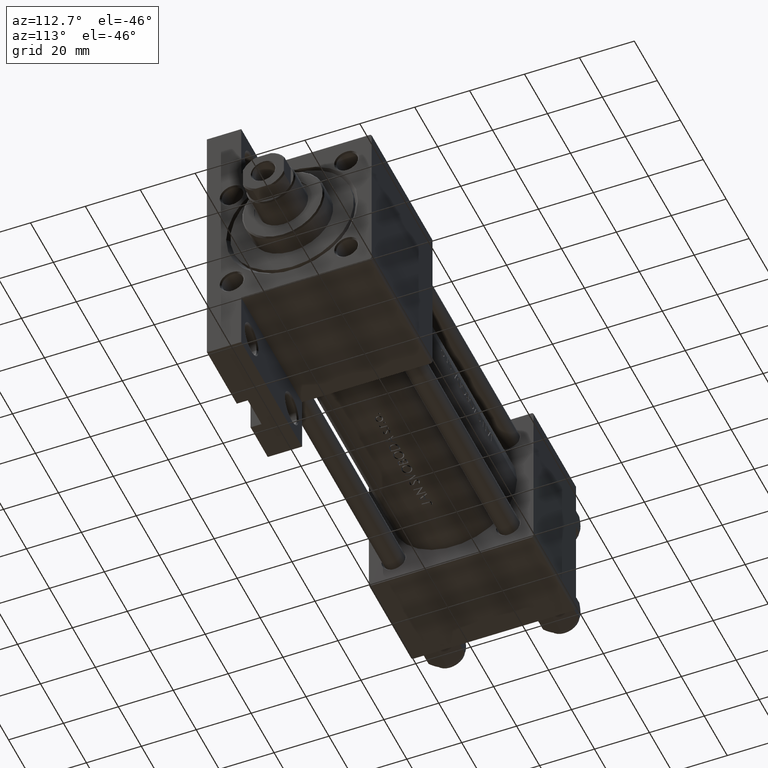
[diagram: clean part render]
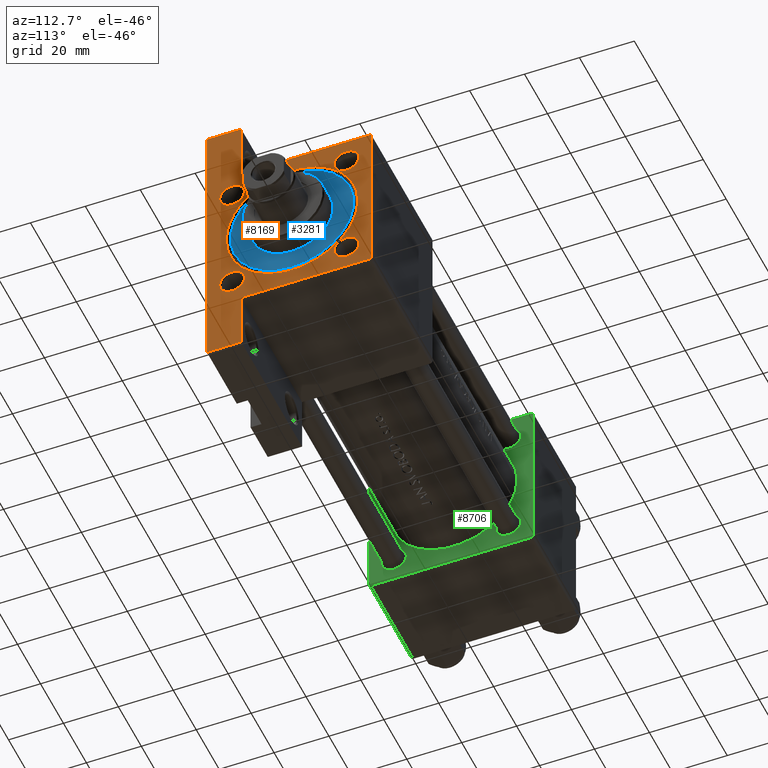
[diagram: same view with three faces highlighted in distinct colors, each labeled with its STEP entity id]
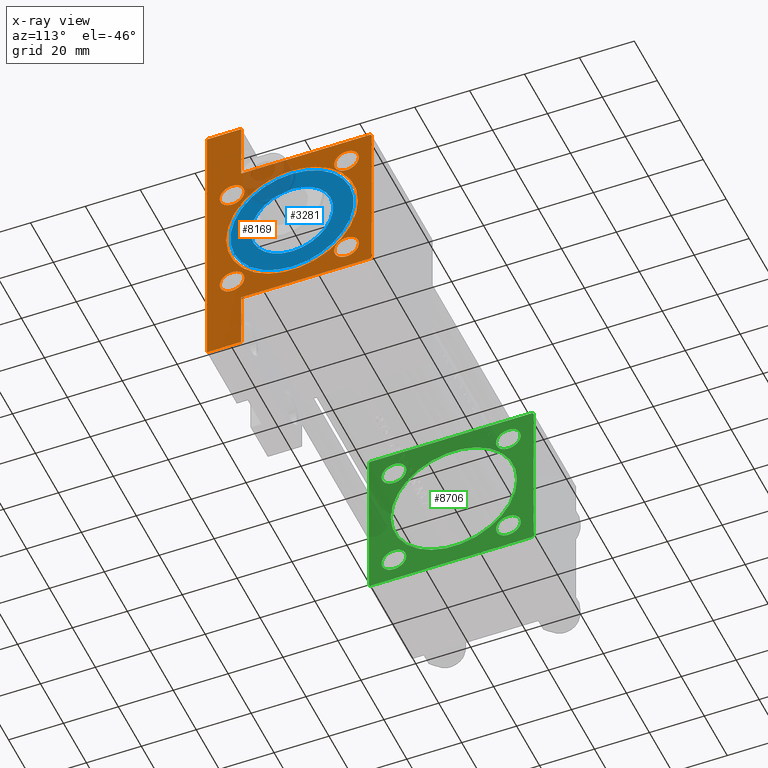
[diagram: x-ray of the same camera — body ghosted, the three highlighted faces saturated]
A machine part, auxiliary view with three faces highlighted in distinct colors.
The next image is the same camera in x-ray (body ghosted, the three faces saturated) — at least one of them is partly hidden behind the body in this view.
Their STEP definitions:

[orange] entity #8169 — the highlighted planar face has unit normal (-1, 0, -0).
#146 = DIRECTION ( 'NONE',  ( 0.000000000000000000, 0.000000000000000000, 1.000000000000000000 ) ) ;
#392 = AXIS2_PLACEMENT_3D ( 'NONE', #3408, #26072, #17970 ) ;
#541 = ORIENTED_EDGE ( 'NONE', *, *, #44202, .T. ) ;
#830 = DIRECTION ( 'NONE',  ( 0.000000000000000000, 0.000000000000000000, 1.000000000000000000 ) ) ;
#1062 = EDGE_CURVE ( 'NONE', #46755, #27860, #35836, .T. ) ;
#1180 = CARTESIAN_POINT ( 'NONE',  ( 178.0000000000000000, -30.00000000000000000, 29.99999999999999289 ) ) ;
#1210 = PLANE ( 'NONE',  #6178 ) ;
#1442 = CARTESIAN_POINT ( 'NONE',  ( 178.0000000000000000, 29.50000000000000000, 30.00000000000000000 ) ) ;
#1510 = VERTEX_POINT ( 'NONE', #36581 ) ;
#1654 = CIRCLE ( 'NONE', #38664, 4.500000000000059508 ) ;
#1881 = CARTESIAN_POINT ( 'NONE',  ( 178.0000000000000000, -20.84999999999999432, 20.85000000000000142 ) ) ;
#2068 = LINE ( 'NONE', #27941, #10746 ) ;
#2916 = EDGE_CURVE ( 'NONE', #38423, #1510, #27242, .T. ) ;
#3182 = VERTEX_POINT ( 'NONE', #15163 ) ;
#3408 = CARTESIAN_POINT ( 'NONE',  ( 178.0000000000000000, 20.84999999999999787, -20.85000000000000142 ) ) ;
#3980 = EDGE_CURVE ( 'NONE', #22064, #28334, #2068, .T. ) ;
#4528 = ORIENTED_EDGE ( 'NONE', *, *, #15642, .T. ) ;
#4920 = DIRECTION ( 'NONE',  ( -0.000000000000000000, 0.000000000000000000, 1.000000000000000000 ) ) ;
#5180 = CARTESIAN_POINT ( 'NONE',  ( 178.0000000000000000, -51.50000000000001421, -17.49999999999999645 ) ) ;
#5204 = VECTOR ( 'NONE', #7363, 1000.000000000000000 ) ;
#5434 = DIRECTION ( 'NONE',  ( -0.000000000000000000, -1.000000000000000000, -0.000000000000000000 ) ) ;
#6178 = AXIS2_PLACEMENT_3D ( 'NONE', #39169, #39410, #4920 ) ;
#6304 = ORIENTED_EDGE ( 'NONE', *, *, #1062, .T. ) ;
#6431 = VECTOR ( 'NONE', #10205, 1000.000000000000114 ) ;
#6840 = ORIENTED_EDGE ( 'NONE', *, *, #38686, .F. ) ;
#7199 = VERTEX_POINT ( 'NONE', #39096 ) ;
#7289 = EDGE_LOOP ( 'NONE', ( #4528, #21973 ) ) ;
#7334 = AXIS2_PLACEMENT_3D ( 'NONE', #8224, #23268, #830 ) ;
#7363 = DIRECTION ( 'NONE',  ( 0.000000000000000000, 0.000000000000000000, -1.000000000000000000 ) ) ;
#8169 = ADVANCED_FACE ( 'NONE', ( #24611, #23877, #42608, #35959, #38676, #16992 ), #1210, .F. ) ;
#8224 = CARTESIAN_POINT ( 'NONE',  ( 178.0000000000000000, -20.84999999999999432, 20.85000000000000142 ) ) ;
#8614 = DIRECTION ( 'NONE',  ( 0.000000000000000000, 0.000000000000000000, -1.000000000000000000 ) ) ;
#8649 = CIRCLE ( 'NONE', #36992, 4.500000000000059508 ) ;
#9032 = DIRECTION ( 'NONE',  ( 0.000000000000000000, -1.000000000000000000, 0.000000000000000000 ) ) ;
#9143 = VECTOR ( 'NONE', #5434, 1000.000000000000000 ) ;
#9617 = CARTESIAN_POINT ( 'NONE',  ( 178.0000000000000000, 20.84999999999999787, -25.35000000000005826 ) ) ;
#9787 = EDGE_LOOP ( 'NONE', ( #6840, #45616, #23591, #17753, #20680, #10633, #21915, #18454, #48780, #33987 ) ) ;
#10099 = LINE ( 'NONE', #25121, #18305 ) ;
#10205 = DIRECTION ( 'NONE',  ( -0.000000000000000000, -0.7071067811865474617, -0.7071067811865474617 ) ) ;
#10518 = DIRECTION ( 'NONE',  ( 0.000000000000000000, 0.000000000000000000, 1.000000000000000000 ) ) ;
#10633 = ORIENTED_EDGE ( 'NONE', *, *, #31574, .T. ) ;
#10746 = VECTOR ( 'NONE', #40015, 1000.000000000000114 ) ;
#10958 = DIRECTION ( 'NONE',  ( 0.000000000000000000, -1.000000000000000000, -1.156482317317871478E-16 ) ) ;
#11319 = CARTESIAN_POINT ( 'NONE',  ( 178.0000000000000000, 20.84999999999999787, 20.85000000000000142 ) ) ;
#11437 = EDGE_LOOP ( 'NONE', ( #541, #19782 ) ) ;
#11599 = VERTEX_POINT ( 'NONE', #46846 ) ;
#11680 = DIRECTION ( 'NONE',  ( -1.000000000000000000, 0.000000000000000000, -0.000000000000000000 ) ) ;
#11824 = VECTOR ( 'NONE', #30905, 1000.000000000000000 ) ;
#12506 = EDGE_CURVE ( 'NONE', #24978, #18838, #16411, .T. ) ;
#13330 = VERTEX_POINT ( 'NONE', #30872 ) ;
#13564 = CARTESIAN_POINT ( 'NONE',  ( 178.0000000000000000, 51.49999999999998579, -17.49999999999999645 ) ) ;
#14427 = CIRCLE ( 'NONE', #7334, 4.500000000000059508 ) ;
#14468 = CARTESIAN_POINT ( 'NONE',  ( 178.0000000000000000, 20.84999999999999787, -20.85000000000000142 ) ) ;
#14972 = VERTEX_POINT ( 'NONE', #44066 ) ;
#15163 = CARTESIAN_POINT ( 'NONE',  ( 178.0000000000000000, 51.49999999999998579, -17.49999999999999645 ) ) ;
#15352 = CARTESIAN_POINT ( 'NONE',  ( 178.0000000000000000, 20.84999999999999787, 20.85000000000000142 ) ) ;
#15642 = EDGE_CURVE ( 'NONE', #29566, #14972, #14427, .T. ) ;
#15662 = VECTOR ( 'NONE', #8614, 1000.000000000000000 ) ;
#16411 = CIRCLE ( 'NONE', #28973, 4.500000000000059508 ) ;
#16709 = DIRECTION ( 'NONE',  ( 0.000000000000000000, 0.000000000000000000, -1.000000000000000000 ) ) ;
#16926 = CARTESIAN_POINT ( 'NONE',  ( 178.0000000000000000, 51.49999999999998579, -17.49999999999999645 ) ) ;
#16992 = FACE_OUTER_BOUND ( 'NONE', #9787, .T. ) ;
#17506 = CARTESIAN_POINT ( 'NONE',  ( 178.0000000000000000, 0.000000000000000000, 1.000000000000007772 ) ) ;
#17605 = CARTESIAN_POINT ( 'NONE',  ( 178.0000000000000000, -30.00000000000000000, 29.50000000000001776 ) ) ;
#17753 = ORIENTED_EDGE ( 'NONE', *, *, #45356, .T. ) ;
#17970 = DIRECTION ( 'NONE',  ( 0.000000000000000000, 0.000000000000000000, 1.000000000000000000 ) ) ;
#18193 = CIRCLE ( 'NONE', #22907, 4.500000000000059508 ) ;
#18305 = VECTOR ( 'NONE', #38403, 1000.000000000000000 ) ;
#18454 = ORIENTED_EDGE ( 'NONE', *, *, #29334, .F. ) ;
#18497 = ORIENTED_EDGE ( 'NONE', *, *, #2916, .T. ) ;
#18689 = VECTOR ( 'NONE', #16709, 1000.000000000000000 ) ;
#18838 = VERTEX_POINT ( 'NONE', #32820 ) ;
#18970 = DIRECTION ( 'NONE',  ( 0.000000000000000000, 0.000000000000000000, 1.000000000000000000 ) ) ;
#19019 = CARTESIAN_POINT ( 'NONE',  ( 178.0000000000000000, 29.99999999999999289, -17.49999999999999645 ) ) ;
#19107 = EDGE_CURVE ( 'NONE', #28334, #35010, #10099, .T. ) ;
#19561 = DIRECTION ( 'NONE',  ( 0.000000000000000000, 0.000000000000000000, 1.000000000000000000 ) ) ;
#19782 = ORIENTED_EDGE ( 'NONE', *, *, #27781, .T. ) ;
#20220 = VERTEX_POINT ( 'NONE', #19019 ) ;
#20680 = ORIENTED_EDGE ( 'NONE', *, *, #31914, .T. ) ;
#20897 = CARTESIAN_POINT ( 'NONE',  ( 178.0000000000000000, -51.50000000000001421, -17.49999999999999645 ) ) ;
#21237 = CARTESIAN_POINT ( 'NONE',  ( 178.0000000000000000, 2.939152317953654205E-15, 25.00000000000006040 ) ) ;
#21676 = DIRECTION ( 'NONE',  ( 0.000000000000000000, 0.000000000000000000, 1.000000000000000000 ) ) ;
#21915 = ORIENTED_EDGE ( 'NONE', *, *, #41815, .T. ) ;
#21973 = ORIENTED_EDGE ( 'NONE', *, *, #40764, .T. ) ;
#22054 = CARTESIAN_POINT ( 'NONE',  ( 178.0000000000000000, 30.00000000000000000, -29.99999999999999289 ) ) ;
#22064 = VERTEX_POINT ( 'NONE', #33874 ) ;
#22106 = DIRECTION ( 'NONE',  ( -1.000000000000000000, 0.000000000000000000, -0.000000000000000000 ) ) ;
#22907 = AXIS2_PLACEMENT_3D ( 'NONE', #14468, #41060, #10518 ) ;
#23268 = DIRECTION ( 'NONE',  ( -1.000000000000000000, 0.000000000000000000, -0.000000000000000000 ) ) ;
#23583 = LINE ( 'NONE', #16926, #36538 ) ;
#23591 = ORIENTED_EDGE ( 'NONE', *, *, #19107, .T. ) ;
#23877 = FACE_BOUND ( 'NONE', #7289, .T. ) ;
#23888 = EDGE_CURVE ( 'NONE', #3182, #20220, #23583, .T. ) ;
#24611 = FACE_BOUND ( 'NONE', #47731, .T. ) ;
#24978 = VERTEX_POINT ( 'NONE', #31289 ) ;
#25121 = CARTESIAN_POINT ( 'NONE',  ( 178.0000000000000000, 30.00000000000000000, 30.00000000000000000 ) ) ;
#25357 = DIRECTION ( 'NONE',  ( -1.000000000000000000, 0.000000000000000000, -0.000000000000000000 ) ) ;
#25683 = AXIS2_PLACEMENT_3D ( 'NONE', #41008, #11680, #19561 ) ;
#26072 = DIRECTION ( 'NONE',  ( -1.000000000000000000, 0.000000000000000000, -0.000000000000000000 ) ) ;
#26414 = CIRCLE ( 'NONE', #42950, 4.500000000000059508 ) ;
#26590 = CARTESIAN_POINT ( 'NONE',  ( 178.0000000000000000, -20.85000000000000142, -25.35000000000005826 ) ) ;
#27242 = CIRCLE ( 'NONE', #31179, 24.00000000000005329 ) ;
#27248 = CARTESIAN_POINT ( 'NONE',  ( 178.0000000000000000, 20.84999999999999787, -16.34999999999994102 ) ) ;
#27532 = EDGE_LOOP ( 'NONE', ( #46308, #18497 ) ) ;
#27781 = EDGE_CURVE ( 'NONE', #13330, #30006, #26414, .T. ) ;
#27860 = VERTEX_POINT ( 'NONE', #27248 ) ;
#27941 = CARTESIAN_POINT ( 'NONE',  ( 178.0000000000000000, 29.50000000000000000, 30.00000000000000000 ) ) ;
#28074 = CARTESIAN_POINT ( 'NONE',  ( 178.0000000000000000, 30.00000000000000000, 30.00000000000000000 ) ) ;
#28321 = LINE ( 'NONE', #28074, #15662 ) ;
#28334 = VERTEX_POINT ( 'NONE', #1442 ) ;
#28500 = EDGE_CURVE ( 'NONE', #1510, #38423, #35117, .T. ) ;
#28973 = AXIS2_PLACEMENT_3D ( 'NONE', #15352, #45418, #48389 ) ;
#29334 = EDGE_CURVE ( 'NONE', #42938, #11599, #39328, .T. ) ;
#29566 = VERTEX_POINT ( 'NONE', #47874 ) ;
#30006 = VERTEX_POINT ( 'NONE', #26590 ) ;
#30037 = EDGE_CURVE ( 'NONE', #18838, #24978, #33560, .T. ) ;
#30128 = ORIENTED_EDGE ( 'NONE', *, *, #44597, .T. ) ;
#30872 = CARTESIAN_POINT ( 'NONE',  ( 178.0000000000000000, -20.85000000000000142, -16.34999999999994102 ) ) ;
#30905 = DIRECTION ( 'NONE',  ( 0.000000000000000000, 0.000000000000000000, -1.000000000000000000 ) ) ;
#31179 = AXIS2_PLACEMENT_3D ( 'NONE', #17506, #44108, #40172 ) ;
#31207 = AXIS2_PLACEMENT_3D ( 'NONE', #11319, #34477, #18970 ) ;
#31289 = CARTESIAN_POINT ( 'NONE',  ( 178.0000000000000000, 20.84999999999999787, 25.35000000000005826 ) ) ;
#31398 = EDGE_LOOP ( 'NONE', ( #6304, #30128 ) ) ;
#31574 = EDGE_CURVE ( 'NONE', #7199, #35891, #43123, .T. ) ;
#31757 = EDGE_CURVE ( 'NONE', #3182, #42938, #47326, .T. ) ;
#31914 = EDGE_CURVE ( 'NONE', #40602, #7199, #42819, .T. ) ;
#32820 = CARTESIAN_POINT ( 'NONE',  ( 178.0000000000000000, 20.84999999999999787, 16.34999999999994102 ) ) ;
#32917 = DIRECTION ( 'NONE',  ( -1.000000000000000000, 0.000000000000000000, -0.000000000000000000 ) ) ;
#33215 = CARTESIAN_POINT ( 'NONE',  ( 178.0000000000000000, -30.00000000000000000, 29.50000000000001776 ) ) ;
#33560 = CIRCLE ( 'NONE', #31207, 4.500000000000059508 ) ;
#33701 = CARTESIAN_POINT ( 'NONE',  ( 178.0000000000000000, -51.50000000000001421, -17.49999999999999645 ) ) ;
#33874 = CARTESIAN_POINT ( 'NONE',  ( 178.0000000000000000, 30.00000000000000000, 29.50000000000000000 ) ) ;
#33987 = ORIENTED_EDGE ( 'NONE', *, *, #23888, .T. ) ;
#34477 = DIRECTION ( 'NONE',  ( -1.000000000000000000, 0.000000000000000000, -0.000000000000000000 ) ) ;
#35010 = VERTEX_POINT ( 'NONE', #35172 ) ;
#35117 = CIRCLE ( 'NONE', #25683, 24.00000000000005329 ) ;
#35172 = CARTESIAN_POINT ( 'NONE',  ( 178.0000000000000000, -29.50000000000002487, 29.99999999999999289 ) ) ;
#35270 = ORIENTED_EDGE ( 'NONE', *, *, #12506, .T. ) ;
#35836 = CIRCLE ( 'NONE', #392, 4.500000000000059508 ) ;
#35891 = VERTEX_POINT ( 'NONE', #20897 ) ;
#35959 = FACE_BOUND ( 'NONE', #31398, .T. ) ;
#36538 = VECTOR ( 'NONE', #9032, 1000.000000000000000 ) ;
#36581 = CARTESIAN_POINT ( 'NONE',  ( 178.0000000000000000, 0.000000000000000000, -23.00000000000004619 ) ) ;
#36992 = AXIS2_PLACEMENT_3D ( 'NONE', #1881, #32917, #47467 ) ;
#37723 = ORIENTED_EDGE ( 'NONE', *, *, #30037, .T. ) ;
#38403 = DIRECTION ( 'NONE',  ( 0.000000000000000000, -1.000000000000000000, -1.156482317317871478E-16 ) ) ;
#38423 = VERTEX_POINT ( 'NONE', #21237 ) ;
#38664 = AXIS2_PLACEMENT_3D ( 'NONE', #44341, #25357, #21676 ) ;
#38676 = FACE_BOUND ( 'NONE', #27532, .T. ) ;
#38686 = EDGE_CURVE ( 'NONE', #22064, #20220, #28321, .T. ) ;
#39096 = CARTESIAN_POINT ( 'NONE',  ( 178.0000000000000000, -30.00000000000000000, -17.49999999999998224 ) ) ;
#39169 = CARTESIAN_POINT ( 'NONE',  ( 178.0000000000000000, 0.000000000000000000, 0.000000000000000000 ) ) ;
#39328 = LINE ( 'NONE', #22054, #43026 ) ;
#39410 = DIRECTION ( 'NONE',  ( -1.000000000000000000, 0.000000000000000000, -0.000000000000000000 ) ) ;
#40015 = DIRECTION ( 'NONE',  ( 0.000000000000000000, -0.7071067811865474617, 0.7071067811865474617 ) ) ;
#40172 = DIRECTION ( 'NONE',  ( 0.000000000000000000, 0.000000000000000000, 1.000000000000000000 ) ) ;
#40509 = LINE ( 'NONE', #17605, #6431 ) ;
#40602 = VERTEX_POINT ( 'NONE', #33215 ) ;
#40764 = EDGE_CURVE ( 'NONE', #14972, #29566, #8649, .T. ) ;
#41008 = CARTESIAN_POINT ( 'NONE',  ( 178.0000000000000000, 0.000000000000000000, 1.000000000000007772 ) ) ;
#41060 = DIRECTION ( 'NONE',  ( -1.000000000000000000, 0.000000000000000000, -0.000000000000000000 ) ) ;
#41815 = EDGE_CURVE ( 'NONE', #35891, #11599, #46190, .T. ) ;
#42031 = CARTESIAN_POINT ( 'NONE',  ( 178.0000000000000000, -20.85000000000000142, -20.85000000000000142 ) ) ;
#42608 = FACE_BOUND ( 'NONE', #11437, .T. ) ;
#42819 = LINE ( 'NONE', #1180, #18689 ) ;
#42938 = VERTEX_POINT ( 'NONE', #47602 ) ;
#42950 = AXIS2_PLACEMENT_3D ( 'NONE', #42031, #22106, #146 ) ;
#43026 = VECTOR ( 'NONE', #10958, 1000.000000000000000 ) ;
#43123 = LINE ( 'NONE', #5180, #9143 ) ;
#44066 = CARTESIAN_POINT ( 'NONE',  ( 178.0000000000000000, -20.84999999999999432, 25.35000000000005826 ) ) ;
#44108 = DIRECTION ( 'NONE',  ( -1.000000000000000000, 0.000000000000000000, -0.000000000000000000 ) ) ;
#44202 = EDGE_CURVE ( 'NONE', #30006, #13330, #1654, .T. ) ;
#44341 = CARTESIAN_POINT ( 'NONE',  ( 178.0000000000000000, -20.85000000000000142, -20.85000000000000142 ) ) ;
#44597 = EDGE_CURVE ( 'NONE', #27860, #46755, #18193, .T. ) ;
#45356 = EDGE_CURVE ( 'NONE', #35010, #40602, #40509, .T. ) ;
#45418 = DIRECTION ( 'NONE',  ( -1.000000000000000000, 0.000000000000000000, -0.000000000000000000 ) ) ;
#45616 = ORIENTED_EDGE ( 'NONE', *, *, #3980, .T. ) ;
#46190 = LINE ( 'NONE', #33701, #11824 ) ;
#46308 = ORIENTED_EDGE ( 'NONE', *, *, #28500, .T. ) ;
#46755 = VERTEX_POINT ( 'NONE', #9617 ) ;
#46846 = CARTESIAN_POINT ( 'NONE',  ( 178.0000000000000000, -51.50000000000001421, -29.99999999999999645 ) ) ;
#47326 = LINE ( 'NONE', #13564, #5204 ) ;
#47467 = DIRECTION ( 'NONE',  ( 0.000000000000000000, 0.000000000000000000, 1.000000000000000000 ) ) ;
#47602 = CARTESIAN_POINT ( 'NONE',  ( 178.0000000000000000, 51.49999999999998579, -29.99999999999999645 ) ) ;
#47731 = EDGE_LOOP ( 'NONE', ( #37723, #35270 ) ) ;
#47874 = CARTESIAN_POINT ( 'NONE',  ( 178.0000000000000000, -20.84999999999999432, 16.34999999999994102 ) ) ;
#48389 = DIRECTION ( 'NONE',  ( 0.000000000000000000, 0.000000000000000000, 1.000000000000000000 ) ) ;
#48780 = ORIENTED_EDGE ( 'NONE', *, *, #31757, .F. ) ;

[blue] entity #3281 — the highlighted planar face has unit normal (1, 0, 0).
#1153 = ORIENTED_EDGE ( 'NONE', *, *, #22227, .T. ) ;
#1373 = DIRECTION ( 'NONE',  ( 1.000000000000000000, 0.000000000000000000, 0.000000000000000000 ) ) ;
#1772 = VERTEX_POINT ( 'NONE', #27899 ) ;
#2790 = ORIENTED_EDGE ( 'NONE', *, *, #29215, .F. ) ;
#3281 = ADVANCED_FACE ( 'NONE', ( #43886, #40913 ), #10124, .T. ) ;
#3652 = AXIS2_PLACEMENT_3D ( 'NONE', #28231, #47215, #1373 ) ;
#5100 = ORIENTED_EDGE ( 'NONE', *, *, #5699, .T. ) ;
#5699 = EDGE_CURVE ( 'NONE', #9415, #1772, #13959, .T. ) ;
#6917 = DIRECTION ( 'NONE',  ( 0.000000000000000000, 0.000000000000000000, 1.000000000000000000 ) ) ;
#7158 = CARTESIAN_POINT ( 'NONE',  ( 0.000000000000000000, 0.000000000000000000, 28.69999999999999929 ) ) ;
#9415 = VERTEX_POINT ( 'NONE', #22213 ) ;
#9499 = CARTESIAN_POINT ( 'NONE',  ( 15.00000000000000000, 1.836970198721029589E-15, 28.69999999999999929 ) ) ;
#9881 = DIRECTION ( 'NONE',  ( 1.000000000000000000, 0.000000000000000000, -0.000000000000000000 ) ) ;
#10124 = PLANE ( 'NONE',  #35906 ) ;
#11921 = DIRECTION ( 'NONE',  ( 0.000000000000000000, 0.000000000000000000, 1.000000000000000000 ) ) ;
#13943 = EDGE_CURVE ( 'NONE', #46607, #47540, #44022, .T. ) ;
#13959 = CIRCLE ( 'NONE', #34383, 22.50000000000000355 ) ;
#17268 = AXIS2_PLACEMENT_3D ( 'NONE', #37565, #11921, #44048 ) ;
#17913 = CARTESIAN_POINT ( 'NONE',  ( 0.000000000000000000, 0.000000000000000000, 28.69999999999999929 ) ) ;
#19963 = AXIS2_PLACEMENT_3D ( 'NONE', #47163, #31879, #20560 ) ;
#20560 = DIRECTION ( 'NONE',  ( 1.000000000000000000, 0.000000000000000000, 0.000000000000000000 ) ) ;
#22213 = CARTESIAN_POINT ( 'NONE',  ( 22.50000000000000355, 2.755455298081545172E-15, 28.69999999999999929 ) ) ;
#22218 = CARTESIAN_POINT ( 'NONE',  ( -15.00000000000000000, 0.000000000000000000, 28.69999999999999929 ) ) ;
#22227 = EDGE_CURVE ( 'NONE', #1772, #9415, #22309, .T. ) ;
#22309 = CIRCLE ( 'NONE', #19963, 22.50000000000000355 ) ;
#27899 = CARTESIAN_POINT ( 'NONE',  ( -22.50000000000000355, 0.000000000000000000, 28.69999999999999929 ) ) ;
#28231 = CARTESIAN_POINT ( 'NONE',  ( 0.000000000000000000, 0.000000000000000000, 28.69999999999999929 ) ) ;
#28753 = DIRECTION ( 'NONE',  ( 0.000000000000000000, 0.000000000000000000, 1.000000000000000000 ) ) ;
#28758 = EDGE_LOOP ( 'NONE', ( #1153, #5100 ) ) ;
#29215 = EDGE_CURVE ( 'NONE', #47540, #46607, #41438, .T. ) ;
#31879 = DIRECTION ( 'NONE',  ( 0.000000000000000000, 0.000000000000000000, 1.000000000000000000 ) ) ;
#32458 = DIRECTION ( 'NONE',  ( 1.000000000000000000, 0.000000000000000000, 0.000000000000000000 ) ) ;
#34383 = AXIS2_PLACEMENT_3D ( 'NONE', #17913, #28753, #32458 ) ;
#35906 = AXIS2_PLACEMENT_3D ( 'NONE', #7158, #6917, #9881 ) ;
#37565 = CARTESIAN_POINT ( 'NONE',  ( 0.000000000000000000, 0.000000000000000000, 28.69999999999999929 ) ) ;
#40844 = ORIENTED_EDGE ( 'NONE', *, *, #13943, .F. ) ;
#40913 = FACE_OUTER_BOUND ( 'NONE', #28758, .T. ) ;
#41438 = CIRCLE ( 'NONE', #3652, 15.00000000000000000 ) ;
#41601 = EDGE_LOOP ( 'NONE', ( #40844, #2790 ) ) ;
#43886 = FACE_BOUND ( 'NONE', #41601, .T. ) ;
#44022 = CIRCLE ( 'NONE', #17268, 15.00000000000000000 ) ;
#44048 = DIRECTION ( 'NONE',  ( 1.000000000000000000, 0.000000000000000000, 0.000000000000000000 ) ) ;
#46607 = VERTEX_POINT ( 'NONE', #22218 ) ;
#47163 = CARTESIAN_POINT ( 'NONE',  ( 0.000000000000000000, 0.000000000000000000, 28.69999999999999929 ) ) ;
#47215 = DIRECTION ( 'NONE',  ( 0.000000000000000000, 0.000000000000000000, 1.000000000000000000 ) ) ;
#47540 = VERTEX_POINT ( 'NONE', #9499 ) ;

[green] entity #8706 — the highlighted planar face has unit normal (-1, 0, -0).
#5 = ORIENTED_EDGE ( 'NONE', *, *, #28105, .T. ) ;
#721 = AXIS2_PLACEMENT_3D ( 'NONE', #10658, #14601, #3027 ) ;
#935 = CARTESIAN_POINT ( 'NONE',  ( 37.00000000000000000, 20.84999999999999787, -16.34999999999999787 ) ) ;
#992 = DIRECTION ( 'NONE',  ( 0.000000000000000000, 0.000000000000000000, 1.000000000000000000 ) ) ;
#1322 = CARTESIAN_POINT ( 'NONE',  ( 37.00000000000000000, 29.49999999999999289, 30.00000000000000000 ) ) ;
#1594 = VERTEX_POINT ( 'NONE', #22266 ) ;
#1655 = EDGE_CURVE ( 'NONE', #18102, #20061, #44488, .T. ) ;
#1805 = DIRECTION ( 'NONE',  ( -1.000000000000000000, 0.000000000000000000, -0.000000000000000000 ) ) ;
#2287 = EDGE_CURVE ( 'NONE', #15618, #36191, #26757, .T. ) ;
#2436 = CARTESIAN_POINT ( 'NONE',  ( 37.00000000000000711, -1.224646799147354686E-16, 24.00000000000000000 ) ) ;
#2649 = DIRECTION ( 'NONE',  ( -0.000000000000000000, -0.7071067811865474617, -0.7071067811865474617 ) ) ;
#2802 = FACE_BOUND ( 'NONE', #16449, .T. ) ;
#2856 = CIRCLE ( 'NONE', #31169, 4.500000000000003553 ) ;
#2908 = EDGE_CURVE ( 'NONE', #16200, #5328, #14773, .T. ) ;
#3013 = AXIS2_PLACEMENT_3D ( 'NONE', #36817, #25702, #7225 ) ;
#3027 = DIRECTION ( 'NONE',  ( 0.000000000000000000, 0.000000000000000000, 1.000000000000000000 ) ) ;
#3217 = ORIENTED_EDGE ( 'NONE', *, *, #40244, .T. ) ;
#3991 = CARTESIAN_POINT ( 'NONE',  ( 37.00000000000000711, -1.224646799147354686E-16, 1.000000000000000888 ) ) ;
#3994 = CIRCLE ( 'NONE', #5593, 4.500000000000003553 ) ;
#4231 = VERTEX_POINT ( 'NONE', #27643 ) ;
#4417 = CARTESIAN_POINT ( 'NONE',  ( 37.00000000000000000, 29.99999999999999289, -29.50000000000000000 ) ) ;
#4640 = DIRECTION ( 'NONE',  ( 0.000000000000000000, -0.7071067811865474617, 0.7071067811865474617 ) ) ;
#4775 = DIRECTION ( 'NONE',  ( 0.000000000000000000, 0.7071067811865474617, -0.7071067811865474617 ) ) ;
#5060 = CARTESIAN_POINT ( 'NONE',  ( 37.00000000000000000, -29.49999999999998579, 29.99999999999999289 ) ) ;
#5144 = LINE ( 'NONE', #4417, #31313 ) ;
#5269 = CARTESIAN_POINT ( 'NONE',  ( 37.00000000000000000, 29.99999999999999289, 29.50000000000000000 ) ) ;
#5328 = VERTEX_POINT ( 'NONE', #38927 ) ;
#5593 = AXIS2_PLACEMENT_3D ( 'NONE', #32357, #1805, #31868 ) ;
#5822 = AXIS2_PLACEMENT_3D ( 'NONE', #43951, #47410, #13652 ) ;
#5851 = AXIS2_PLACEMENT_3D ( 'NONE', #21540, #36566, #18083 ) ;
#5906 = CARTESIAN_POINT ( 'NONE',  ( 37.00000000000000000, -20.84999999999999076, -25.35000000000000853 ) ) ;
#6329 = EDGE_LOOP ( 'NONE', ( #38751, #12811 ) ) ;
#7225 = DIRECTION ( 'NONE',  ( -0.000000000000000000, 0.000000000000000000, 1.000000000000000000 ) ) ;
#8261 = CARTESIAN_POINT ( 'NONE',  ( 37.00000000000000000, 29.99999999999999289, 30.00000000000000000 ) ) ;
#8468 = EDGE_CURVE ( 'NONE', #37908, #20463, #39532, .T. ) ;
#8706 = ADVANCED_FACE ( 'NONE', ( #44443, #2802, #10680, #25463, #33114, #14872 ), #40986, .F. ) ;
#8744 = ORIENTED_EDGE ( 'NONE', *, *, #24358, .T. ) ;
#8894 = CIRCLE ( 'NONE', #25431, 4.500000000000003553 ) ;
#9089 = VECTOR ( 'NONE', #15677, 1000.000000000000000 ) ;
#9321 = CARTESIAN_POINT ( 'NONE',  ( 37.00000000000000000, -30.00000000000000000, 29.49999999999999289 ) ) ;
#10115 = VECTOR ( 'NONE', #36332, 1000.000000000000000 ) ;
#10469 = ORIENTED_EDGE ( 'NONE', *, *, #21330, .T. ) ;
#10597 = CIRCLE ( 'NONE', #5851, 4.500000000000003553 ) ;
#10637 = CARTESIAN_POINT ( 'NONE',  ( 37.00000000000000000, 20.84999999999999787, 20.85000000000000142 ) ) ;
#10658 = CARTESIAN_POINT ( 'NONE',  ( 37.00000000000000000, 20.84999999999999787, -20.85000000000000142 ) ) ;
#10680 = FACE_BOUND ( 'NONE', #28541, .T. ) ;
#10981 = CIRCLE ( 'NONE', #721, 4.500000000000003553 ) ;
#12811 = ORIENTED_EDGE ( 'NONE', *, *, #20307, .T. ) ;
#12981 = EDGE_CURVE ( 'NONE', #1594, #20705, #25864, .T. ) ;
#13652 = DIRECTION ( 'NONE',  ( 0.000000000000000000, 0.000000000000000000, 1.000000000000000000 ) ) ;
#13809 = DIRECTION ( 'NONE',  ( 0.000000000000000000, -1.000000000000000000, -1.156482317317871725E-16 ) ) ;
#13885 = VECTOR ( 'NONE', #13809, 1000.000000000000000 ) ;
#14059 = DIRECTION ( 'NONE',  ( 0.000000000000000000, 0.000000000000000000, 1.000000000000000000 ) ) ;
#14601 = DIRECTION ( 'NONE',  ( -1.000000000000000000, 0.000000000000000000, -0.000000000000000000 ) ) ;
#14773 = LINE ( 'NONE', #48053, #13885 ) ;
#14872 = FACE_OUTER_BOUND ( 'NONE', #21677, .T. ) ;
#15102 = VECTOR ( 'NONE', #2649, 1000.000000000000114 ) ;
#15287 = AXIS2_PLACEMENT_3D ( 'NONE', #10637, #28881, #43915 ) ;
#15604 = CARTESIAN_POINT ( 'NONE',  ( 37.00000000000000000, -20.84999999999999076, 20.85000000000000497 ) ) ;
#15618 = VERTEX_POINT ( 'NONE', #1322 ) ;
#15677 = DIRECTION ( 'NONE',  ( 0.000000000000000000, -1.000000000000000000, -1.156482317317871725E-16 ) ) ;
#15819 = DIRECTION ( 'NONE',  ( 0.000000000000000000, 0.000000000000000000, 1.000000000000000000 ) ) ;
#16103 = LINE ( 'NONE', #41736, #37166 ) ;
#16200 = VERTEX_POINT ( 'NONE', #48735 ) ;
#16449 = EDGE_LOOP ( 'NONE', ( #27596, #3217 ) ) ;
#17009 = VECTOR ( 'NONE', #4640, 1000.000000000000114 ) ;
#18083 = DIRECTION ( 'NONE',  ( 0.000000000000000000, 0.000000000000000000, 1.000000000000000000 ) ) ;
#18102 = VERTEX_POINT ( 'NONE', #24137 ) ;
#18794 = EDGE_CURVE ( 'NONE', #32837, #26315, #36550, .T. ) ;
#19716 = VERTEX_POINT ( 'NONE', #30332 ) ;
#20061 = VERTEX_POINT ( 'NONE', #36295 ) ;
#20307 = EDGE_CURVE ( 'NONE', #36692, #44117, #8894, .T. ) ;
#20463 = VERTEX_POINT ( 'NONE', #21212 ) ;
#20705 = VERTEX_POINT ( 'NONE', #935 ) ;
#20774 = EDGE_CURVE ( 'NONE', #36191, #37908, #21398, .T. ) ;
#21212 = CARTESIAN_POINT ( 'NONE',  ( 37.00000000000000000, -30.00000000000000000, -29.50000000000001776 ) ) ;
#21330 = EDGE_CURVE ( 'NONE', #20463, #5328, #16103, .T. ) ;
#21398 = LINE ( 'NONE', #9321, #15102 ) ;
#21540 = CARTESIAN_POINT ( 'NONE',  ( 37.00000000000000000, 20.84999999999999787, 20.85000000000000142 ) ) ;
#21567 = ORIENTED_EDGE ( 'NONE', *, *, #20774, .T. ) ;
#21677 = EDGE_LOOP ( 'NONE', ( #29787, #42791, #38786, #41840, #38144, #21567, #44518, #10469 ) ) ;
#22205 = CARTESIAN_POINT ( 'NONE',  ( 37.00000000000000000, 20.84999999999999787, 25.35000000000000497 ) ) ;
#22266 = CARTESIAN_POINT ( 'NONE',  ( 37.00000000000000000, 20.84999999999999787, -25.35000000000000497 ) ) ;
#22877 = LINE ( 'NONE', #30018, #45461 ) ;
#23233 = AXIS2_PLACEMENT_3D ( 'NONE', #15604, #31105, #30627 ) ;
#23321 = EDGE_CURVE ( 'NONE', #4231, #37703, #47544, .T. ) ;
#23390 = DIRECTION ( 'NONE',  ( -0.000000000000000000, 0.7071067811865574537, 0.7071067811865376918 ) ) ;
#24137 = CARTESIAN_POINT ( 'NONE',  ( 37.00000000000000000, -20.84999999999999076, 25.35000000000000853 ) ) ;
#24358 = EDGE_CURVE ( 'NONE', #26315, #32837, #10597, .T. ) ;
#25431 = AXIS2_PLACEMENT_3D ( 'NONE', #34770, #27619, #992 ) ;
#25463 = FACE_BOUND ( 'NONE', #37363, .T. ) ;
#25612 = DIRECTION ( 'NONE',  ( -1.000000000000000000, 0.000000000000000000, -0.000000000000000000 ) ) ;
#25702 = DIRECTION ( 'NONE',  ( -1.000000000000000000, 0.000000000000000000, -0.000000000000000000 ) ) ;
#25864 = CIRCLE ( 'NONE', #38467, 4.500000000000003553 ) ;
#26315 = VERTEX_POINT ( 'NONE', #22205 ) ;
#26757 = LINE ( 'NONE', #8261, #9089 ) ;
#27462 = EDGE_CURVE ( 'NONE', #41804, #15618, #38402, .T. ) ;
#27596 = ORIENTED_EDGE ( 'NONE', *, *, #12981, .T. ) ;
#27619 = DIRECTION ( 'NONE',  ( -1.000000000000000000, 0.000000000000000000, -0.000000000000000000 ) ) ;
#27643 = CARTESIAN_POINT ( 'NONE',  ( 37.00000000000000711, 2.694222958124176809E-15, -22.00000000000000000 ) ) ;
#28105 = EDGE_CURVE ( 'NONE', #20061, #18102, #2856, .T. ) ;
#28215 = CARTESIAN_POINT ( 'NONE',  ( 37.00000000000000000, 20.84999999999999787, -20.85000000000000142 ) ) ;
#28262 = ORIENTED_EDGE ( 'NONE', *, *, #23321, .F. ) ;
#28541 = EDGE_LOOP ( 'NONE', ( #5, #45428 ) ) ;
#28881 = DIRECTION ( 'NONE',  ( -1.000000000000000000, 0.000000000000000000, -0.000000000000000000 ) ) ;
#28896 = ORIENTED_EDGE ( 'NONE', *, *, #41155, .F. ) ;
#29787 = ORIENTED_EDGE ( 'NONE', *, *, #2908, .F. ) ;
#30018 = CARTESIAN_POINT ( 'NONE',  ( 37.00000000000000000, 29.99999999999999289, 30.00000000000000000 ) ) ;
#30332 = CARTESIAN_POINT ( 'NONE',  ( 37.00000000000000000, 29.99999999999999289, -29.50000000000000000 ) ) ;
#30627 = DIRECTION ( 'NONE',  ( 0.000000000000000000, 0.000000000000000000, 1.000000000000000000 ) ) ;
#31105 = DIRECTION ( 'NONE',  ( -1.000000000000000000, 0.000000000000000000, -0.000000000000000000 ) ) ;
#31169 = AXIS2_PLACEMENT_3D ( 'NONE', #48531, #25612, #14059 ) ;
#31313 = VECTOR ( 'NONE', #23390, 999.9999999999998863 ) ;
#31650 = EDGE_LOOP ( 'NONE', ( #28896, #28262 ) ) ;
#31868 = DIRECTION ( 'NONE',  ( 0.000000000000000000, 0.000000000000000000, 1.000000000000000000 ) ) ;
#32357 = CARTESIAN_POINT ( 'NONE',  ( 37.00000000000000000, -20.84999999999999076, -20.85000000000000497 ) ) ;
#32837 = VERTEX_POINT ( 'NONE', #48721 ) ;
#33114 = FACE_BOUND ( 'NONE', #31650, .T. ) ;
#33733 = CARTESIAN_POINT ( 'NONE',  ( 37.00000000000000000, 29.49999999999999289, 30.00000000000000000 ) ) ;
#34770 = CARTESIAN_POINT ( 'NONE',  ( 37.00000000000000000, -20.84999999999999076, -20.85000000000000497 ) ) ;
#34790 = DIRECTION ( 'NONE',  ( 1.000000000000000000, -0.000000000000000000, 0.000000000000000000 ) ) ;
#35601 = CARTESIAN_POINT ( 'NONE',  ( 37.00000000000000000, -30.00000000000000000, 29.99999999999999289 ) ) ;
#35682 = EDGE_CURVE ( 'NONE', #41804, #19716, #22877, .T. ) ;
#36182 = CIRCLE ( 'NONE', #39340, 23.00000000000000000 ) ;
#36191 = VERTEX_POINT ( 'NONE', #5060 ) ;
#36295 = CARTESIAN_POINT ( 'NONE',  ( 37.00000000000000000, -20.84999999999999076, 16.35000000000000142 ) ) ;
#36332 = DIRECTION ( 'NONE',  ( 0.000000000000000000, 0.000000000000000000, -1.000000000000000000 ) ) ;
#36550 = CIRCLE ( 'NONE', #15287, 4.500000000000003553 ) ;
#36566 = DIRECTION ( 'NONE',  ( -1.000000000000000000, 0.000000000000000000, -0.000000000000000000 ) ) ;
#36692 = VERTEX_POINT ( 'NONE', #44852 ) ;
#36817 = CARTESIAN_POINT ( 'NONE',  ( 37.00000000000000000, 0.000000000000000000, 0.000000000000000000 ) ) ;
#36818 = EDGE_CURVE ( 'NONE', #16200, #19716, #5144, .T. ) ;
#37166 = VECTOR ( 'NONE', #4775, 1000.000000000000114 ) ;
#37363 = EDGE_LOOP ( 'NONE', ( #43758, #8744 ) ) ;
#37703 = VERTEX_POINT ( 'NONE', #2436 ) ;
#37908 = VERTEX_POINT ( 'NONE', #39832 ) ;
#38144 = ORIENTED_EDGE ( 'NONE', *, *, #2287, .T. ) ;
#38337 = DIRECTION ( 'NONE',  ( -1.000000000000000000, 0.000000000000000000, -0.000000000000000000 ) ) ;
#38402 = LINE ( 'NONE', #33733, #17009 ) ;
#38467 = AXIS2_PLACEMENT_3D ( 'NONE', #28215, #38337, #38818 ) ;
#38751 = ORIENTED_EDGE ( 'NONE', *, *, #48035, .T. ) ;
#38786 = ORIENTED_EDGE ( 'NONE', *, *, #35682, .F. ) ;
#38818 = DIRECTION ( 'NONE',  ( 0.000000000000000000, 0.000000000000000000, 1.000000000000000000 ) ) ;
#38927 = CARTESIAN_POINT ( 'NONE',  ( 37.00000000000000000, -29.50000000000000000, -30.00000000000000711 ) ) ;
#39340 = AXIS2_PLACEMENT_3D ( 'NONE', #3991, #34790, #15819 ) ;
#39532 = LINE ( 'NONE', #35601, #10115 ) ;
#39832 = CARTESIAN_POINT ( 'NONE',  ( 37.00000000000000000, -30.00000000000000000, 29.49999999999999289 ) ) ;
#40244 = EDGE_CURVE ( 'NONE', #20705, #1594, #10981, .T. ) ;
#40986 = PLANE ( 'NONE',  #3013 ) ;
#41155 = EDGE_CURVE ( 'NONE', #37703, #4231, #36182, .T. ) ;
#41736 = CARTESIAN_POINT ( 'NONE',  ( 37.00000000000000000, -29.50000000000001066, -30.00000000000000711 ) ) ;
#41804 = VERTEX_POINT ( 'NONE', #5269 ) ;
#41840 = ORIENTED_EDGE ( 'NONE', *, *, #27462, .T. ) ;
#42791 = ORIENTED_EDGE ( 'NONE', *, *, #36818, .T. ) ;
#43758 = ORIENTED_EDGE ( 'NONE', *, *, #18794, .T. ) ;
#43915 = DIRECTION ( 'NONE',  ( 0.000000000000000000, 0.000000000000000000, 1.000000000000000000 ) ) ;
#43951 = CARTESIAN_POINT ( 'NONE',  ( 37.00000000000000711, -1.224646799147354686E-16, 1.000000000000000888 ) ) ;
#44117 = VERTEX_POINT ( 'NONE', #5906 ) ;
#44443 = FACE_BOUND ( 'NONE', #6329, .T. ) ;
#44488 = CIRCLE ( 'NONE', #23233, 4.500000000000003553 ) ;
#44518 = ORIENTED_EDGE ( 'NONE', *, *, #8468, .T. ) ;
#44852 = CARTESIAN_POINT ( 'NONE',  ( 37.00000000000000000, -20.84999999999999076, -16.35000000000000142 ) ) ;
#45052 = DIRECTION ( 'NONE',  ( 0.000000000000000000, 0.000000000000000000, -1.000000000000000000 ) ) ;
#45428 = ORIENTED_EDGE ( 'NONE', *, *, #1655, .T. ) ;
#45461 = VECTOR ( 'NONE', #45052, 1000.000000000000000 ) ;
#47410 = DIRECTION ( 'NONE',  ( 1.000000000000000000, -0.000000000000000000, 0.000000000000000000 ) ) ;
#47544 = CIRCLE ( 'NONE', #5822, 23.00000000000000000 ) ;
#48035 = EDGE_CURVE ( 'NONE', #44117, #36692, #3994, .T. ) ;
#48053 = CARTESIAN_POINT ( 'NONE',  ( 37.00000000000000000, 29.99999999999999289, -30.00000000000000000 ) ) ;
#48531 = CARTESIAN_POINT ( 'NONE',  ( 37.00000000000000000, -20.84999999999999076, 20.85000000000000497 ) ) ;
#48721 = CARTESIAN_POINT ( 'NONE',  ( 37.00000000000000000, 20.84999999999999787, 16.34999999999999787 ) ) ;
#48735 = CARTESIAN_POINT ( 'NONE',  ( 37.00000000000000000, 29.49999999999997868, -30.00000000000000000 ) ) ;